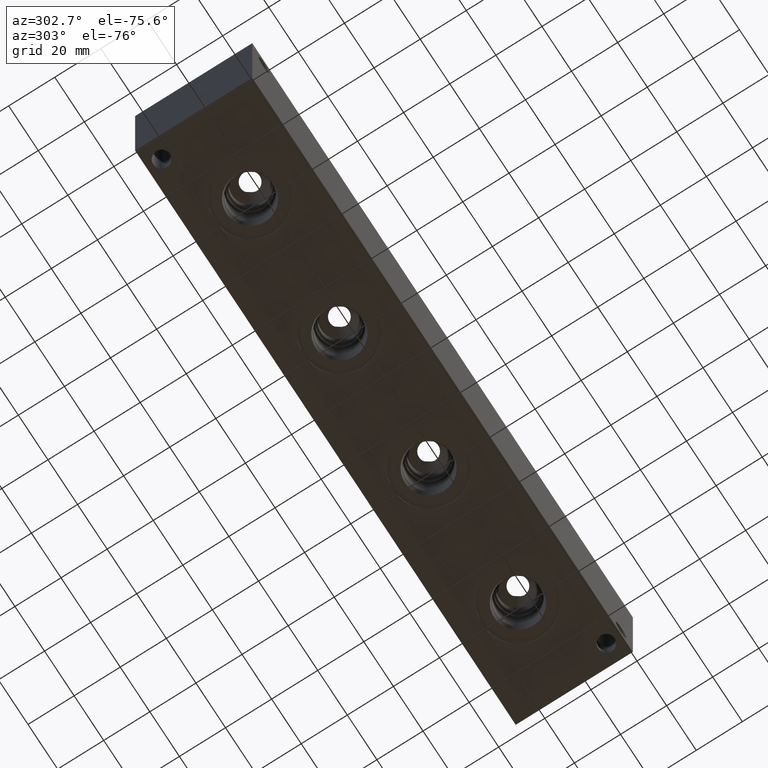
[diagram: clean part render]
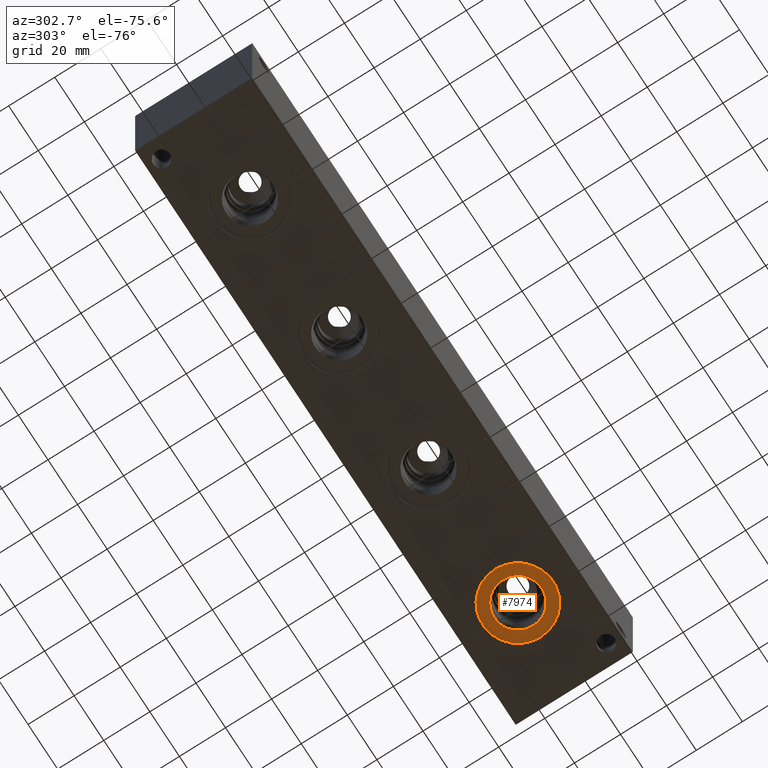
[diagram: same view with one face highlighted and labeled with its STEP entity id]
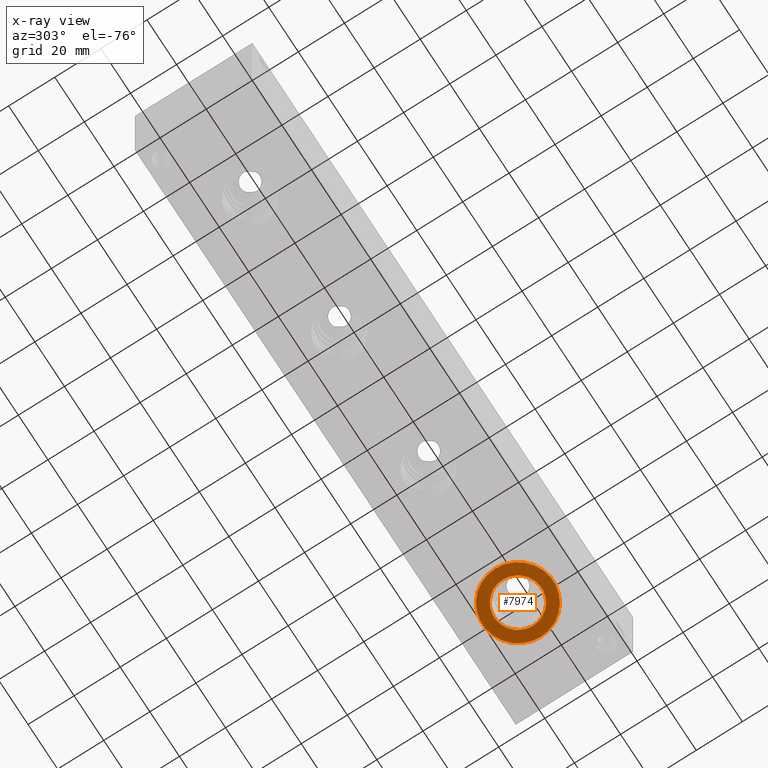
[diagram: x-ray of the same camera — body ghosted, the highlighted face saturated]
A machine part, auxiliary view. The second image highlights one B-rep face of the part: STEP entity #7974.
The next image is the same camera in x-ray: the body ghosted, the highlighted face saturated — about 0% of this face is hidden behind the body in this view.
In plain terms, the highlighted planar face has unit normal (0, 0, 1).
Its self-contained STEP definition (entity closure, byte-faithful):
#127=CIRCLE('',#8325,15.3162);
#128=CIRCLE('',#8326,15.3162);
#129=CIRCLE('',#8328,10.2997);
#130=CIRCLE('',#8329,10.2997);
#307=FACE_BOUND('',#1338,.T.);
#543=PLANE('',#8327);
#884=FACE_OUTER_BOUND('',#1337,.T.);
#1337=EDGE_LOOP('',(#6756,#6757));
#1338=EDGE_LOOP('',(#6758,#6759));
#3735=VERTEX_POINT('',#13441);
#3736=VERTEX_POINT('',#13443);
#3737=VERTEX_POINT('',#13447);
#3738=VERTEX_POINT('',#13448);
#4772=EDGE_CURVE('',#3735,#3736,#127,.T.);
#4773=EDGE_CURVE('',#3736,#3735,#128,.T.);
#4774=EDGE_CURVE('',#3737,#3738,#129,.T.);
#4775=EDGE_CURVE('',#3738,#3737,#130,.T.);
#6756=ORIENTED_EDGE('',*,*,#4773,.F.);
#6757=ORIENTED_EDGE('',*,*,#4772,.F.);
#6758=ORIENTED_EDGE('',*,*,#4774,.T.);
#6759=ORIENTED_EDGE('',*,*,#4775,.T.);
#7974=ADVANCED_FACE('',(#884,#307),#543,.F.);
#8325=AXIS2_PLACEMENT_3D('',#13444,#9709,#9710);
#8326=AXIS2_PLACEMENT_3D('',#13445,#9711,#9712);
#8327=AXIS2_PLACEMENT_3D('',#13446,#9713,#9714);
#8328=AXIS2_PLACEMENT_3D('',#13449,#9715,#9716);
#8329=AXIS2_PLACEMENT_3D('',#13450,#9717,#9718);
#9709=DIRECTION('center_axis',(0.,0.,1.));
#9710=DIRECTION('ref_axis',(1.,0.,0.));
#9711=DIRECTION('center_axis',(0.,0.,1.));
#9712=DIRECTION('ref_axis',(1.,0.,0.));
#9713=DIRECTION('center_axis',(0.,0.,1.));
#9714=DIRECTION('ref_axis',(1.,0.,0.));
#9715=DIRECTION('center_axis',(0.,0.,1.));
#9716=DIRECTION('ref_axis',(1.,0.,0.));
#9717=DIRECTION('center_axis',(0.,0.,1.));
#9718=DIRECTION('ref_axis',(1.,0.,0.));
#13441=CARTESIAN_POINT('',(203.7588,25.4,0.7874));
#13443=CARTESIAN_POINT('',(234.3912,25.4,0.7874));
#13444=CARTESIAN_POINT('Origin',(219.075,25.4,0.7874));
#13445=CARTESIAN_POINT('Origin',(219.075,25.4,0.7874));
#13446=CARTESIAN_POINT('Origin',(229.3747,25.4,0.7874));
#13447=CARTESIAN_POINT('',(229.3747,25.4,0.7874));
#13448=CARTESIAN_POINT('',(208.7753,25.4,0.7874));
#13449=CARTESIAN_POINT('Origin',(219.075,25.4,0.7874));
#13450=CARTESIAN_POINT('Origin',(219.075,25.4,0.7874));